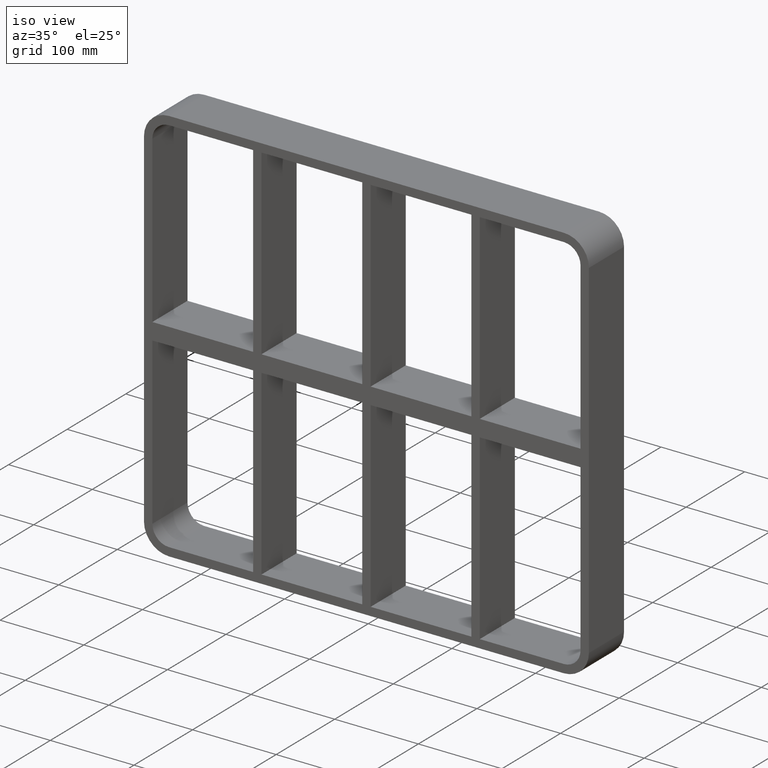
[diagram: clean part render]
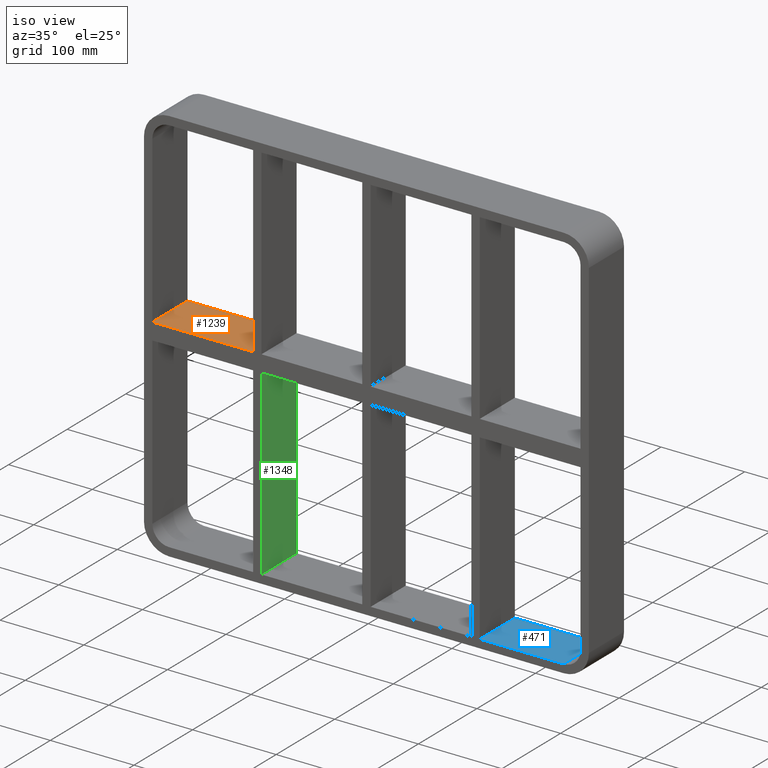
[diagram: same view with three faces highlighted in distinct colors, each labeled with its STEP entity id]
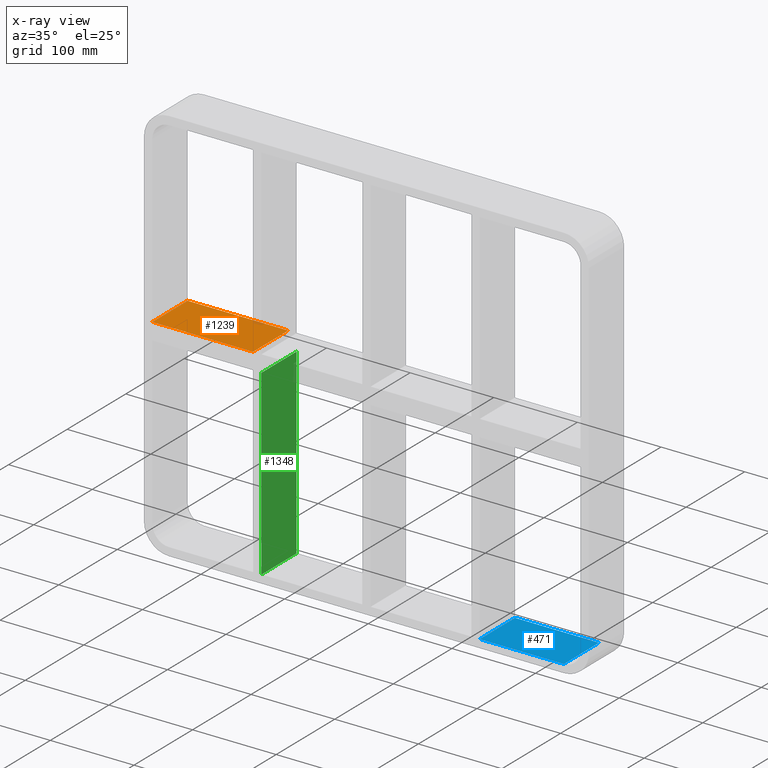
[diagram: x-ray of the same camera — body ghosted, the three highlighted faces saturated]
A machine part, iso view with three faces highlighted in distinct colors.
The next image is the same camera in x-ray (body ghosted, the three faces saturated) — at least one of them is partly hidden behind the body in this view.
Their STEP definitions:

[orange] entity #1239 — the highlighted planar face has unit normal (0, 0, 1).
#678=CARTESIAN_POINT('',(-255.9999999999998,-3.0,10.0));
#679=VERTEX_POINT('',#678);
#705=CARTESIAN_POINT('',(-135.50000000000139,-3.0,10.0));
#706=VERTEX_POINT('',#705);
#713=CARTESIAN_POINT('',(-255.9999999999998,-3.0,10.0));
#714=DIRECTION('',(1.0,0.0,0.0));
#715=VECTOR('',#714,120.49999999999841);
#716=LINE('',#713,#715);
#717=EDGE_CURVE('',#679,#706,#716,.T.);
#980=CARTESIAN_POINT('',(-255.9999999999998,57.0,10.0));
#981=VERTEX_POINT('',#980);
#982=CARTESIAN_POINT('',(-135.50000000000139,57.0,10.0));
#983=VERTEX_POINT('',#982);
#984=CARTESIAN_POINT('',(-255.9999999999998,57.0,10.0));
#985=DIRECTION('',(1.0,0.0,0.0));
#986=VECTOR('',#985,120.49999999999841);
#987=LINE('',#984,#986);
#988=EDGE_CURVE('',#981,#983,#987,.T.);
#1218=CARTESIAN_POINT('',(-255.9999999999998,-3.0,10.0));
#1219=DIRECTION('',(0.0,0.0,1.0));
#1220=DIRECTION('',(1.0,0.0,0.0));
#1221=AXIS2_PLACEMENT_3D('',#1218,#1219,#1220);
#1222=PLANE('',#1221);
#1223=CARTESIAN_POINT('',(-135.50000000000139,57.0,10.0));
#1224=DIRECTION('',(0.0,-1.0,0.0));
#1225=VECTOR('',#1224,60.0);
#1226=LINE('',#1223,#1225);
#1227=EDGE_CURVE('',#983,#706,#1226,.T.);
#1228=ORIENTED_EDGE('',*,*,#1227,.F.);
#1229=ORIENTED_EDGE('',*,*,#988,.F.);
#1230=CARTESIAN_POINT('',(-256.0,-3.0,10.0));
#1231=DIRECTION('',(0.0,1.0,0.0));
#1232=VECTOR('',#1231,60.000000000000007);
#1233=LINE('',#1230,#1232);
#1234=EDGE_CURVE('',#679,#981,#1233,.T.);
#1235=ORIENTED_EDGE('',*,*,#1234,.F.);
#1236=ORIENTED_EDGE('',*,*,#717,.T.);
#1237=EDGE_LOOP('',(#1228,#1229,#1235,#1236));
#1238=FACE_OUTER_BOUND('',#1237,.T.);
#1239=ADVANCED_FACE('',(#1238),#1222,.T.);

[blue] entity #471 — the highlighted planar face has unit normal (0, 0, -1).
#203=CARTESIAN_POINT('',(135.50000000000728,-3.0,-227.99999999998451));
#204=VERTEX_POINT('',#203);
#211=CARTESIAN_POINT('',(135.50000000000728,57.0,-227.99999999998451));
#212=VERTEX_POINT('',#211);
#213=CARTESIAN_POINT('',(135.50000000000728,57.000000000000007,-228.0));
#214=DIRECTION('',(0.0,-1.0,0.0));
#215=VECTOR('',#214,60.000000000000007);
#216=LINE('',#213,#215);
#217=EDGE_CURVE('',#212,#204,#216,.T.);
#441=CARTESIAN_POINT('',(256.00000000000011,0.0,-228.0));
#442=DIRECTION('',(0.0,0.0,-1.0));
#443=DIRECTION('',(-1.0,0.0,0.0));
#444=AXIS2_PLACEMENT_3D('',#441,#442,#443);
#445=PLANE('',#444);
#446=ORIENTED_EDGE('',*,*,#217,.T.);
#447=CARTESIAN_POINT('',(236.00000000000009,-3.0,-228.0));
#448=VERTEX_POINT('',#447);
#449=CARTESIAN_POINT('',(236.00000000000011,-3.0,-228.0));
#450=DIRECTION('',(-1.0,0.0,0.0));
#451=VECTOR('',#450,100.49999999999281);
#452=LINE('',#449,#451);
#453=EDGE_CURVE('',#448,#204,#452,.T.);
#454=ORIENTED_EDGE('',*,*,#453,.F.);
#455=CARTESIAN_POINT('',(236.00000000000009,57.0,-228.0));
#456=VERTEX_POINT('',#455);
#457=CARTESIAN_POINT('',(236.00000000000009,57.0,-228.0));
#458=DIRECTION('',(0.0,-1.0,0.0));
#459=VECTOR('',#458,60.0);
#460=LINE('',#457,#459);
#461=EDGE_CURVE('',#456,#448,#460,.T.);
#462=ORIENTED_EDGE('',*,*,#461,.F.);
#463=CARTESIAN_POINT('',(135.5000000000073,57.0,-228.0));
#464=DIRECTION('',(1.0,0.0,0.0));
#465=VECTOR('',#464,100.49999999999281);
#466=LINE('',#463,#465);
#467=EDGE_CURVE('',#212,#456,#466,.T.);
#468=ORIENTED_EDGE('',*,*,#467,.F.);
#469=EDGE_LOOP('',(#446,#454,#462,#468));
#470=FACE_OUTER_BOUND('',#469,.T.);
#471=ADVANCED_FACE('',(#470),#445,.F.);

[green] entity #1348 — the highlighted planar face has unit normal (1, 0, 0).
#394=CARTESIAN_POINT('',(-125.49999999999272,57.0,-227.99999999998451));
#395=VERTEX_POINT('',#394);
#402=CARTESIAN_POINT('',(-125.49999999999272,-3.0,-227.99999999998451));
#403=VERTEX_POINT('',#402);
#404=CARTESIAN_POINT('',(-125.49999999999272,57.000000000000007,-228.0));
#405=DIRECTION('',(0.0,-1.0,0.0));
#406=VECTOR('',#405,60.000000000000007);
#407=LINE('',#404,#406);
#408=EDGE_CURVE('',#395,#403,#407,.T.);
#575=CARTESIAN_POINT('',(-125.49999999999272,-3.0,-10.000000000009358));
#576=VERTEX_POINT('',#575);
#577=CARTESIAN_POINT('',(-125.49999999999272,-3.0,-10.000000000009351));
#578=DIRECTION('',(0.0,0.0,-1.0));
#579=VECTOR('',#578,217.99999999997519);
#580=LINE('',#577,#579);
#581=EDGE_CURVE('',#576,#403,#580,.T.);
#796=CARTESIAN_POINT('',(-125.49999999999272,57.0,-10.000000000009358));
#797=VERTEX_POINT('',#796);
#798=CARTESIAN_POINT('',(-125.49999999999271,57.0,-10.000000000009342));
#799=DIRECTION('',(0.0,-1.0,0.0));
#800=VECTOR('',#799,60.0);
#801=LINE('',#798,#800);
#802=EDGE_CURVE('',#797,#576,#801,.T.);
#971=CARTESIAN_POINT('',(-125.49999999999272,57.0,-10.000000000009351));
#972=DIRECTION('',(0.0,0.0,-1.0));
#973=VECTOR('',#972,217.99999999997519);
#974=LINE('',#971,#973);
#975=EDGE_CURVE('',#797,#395,#974,.T.);
#1337=CARTESIAN_POINT('',(-125.49999999999272,-3.0,228.0));
#1338=DIRECTION('',(1.0,0.0,0.0));
#1339=DIRECTION('',(0.0,0.0,-1.0));
#1340=AXIS2_PLACEMENT_3D('',#1337,#1338,#1339);
#1341=PLANE('',#1340);
#1342=ORIENTED_EDGE('',*,*,#802,.T.);
#1343=ORIENTED_EDGE('',*,*,#581,.T.);
#1344=ORIENTED_EDGE('',*,*,#408,.F.);
#1345=ORIENTED_EDGE('',*,*,#975,.F.);
#1346=EDGE_LOOP('',(#1342,#1343,#1344,#1345));
#1347=FACE_OUTER_BOUND('',#1346,.T.);
#1348=ADVANCED_FACE('',(#1347),#1341,.T.);